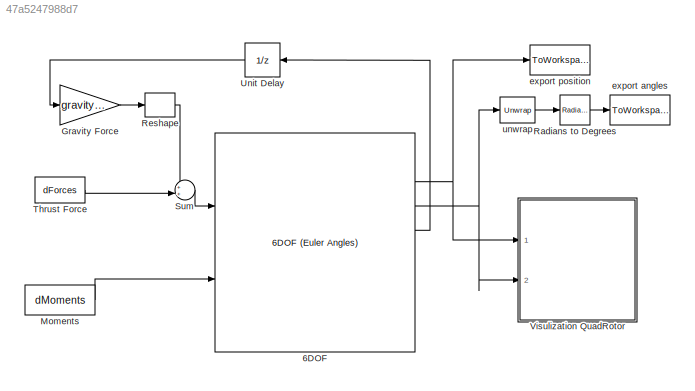
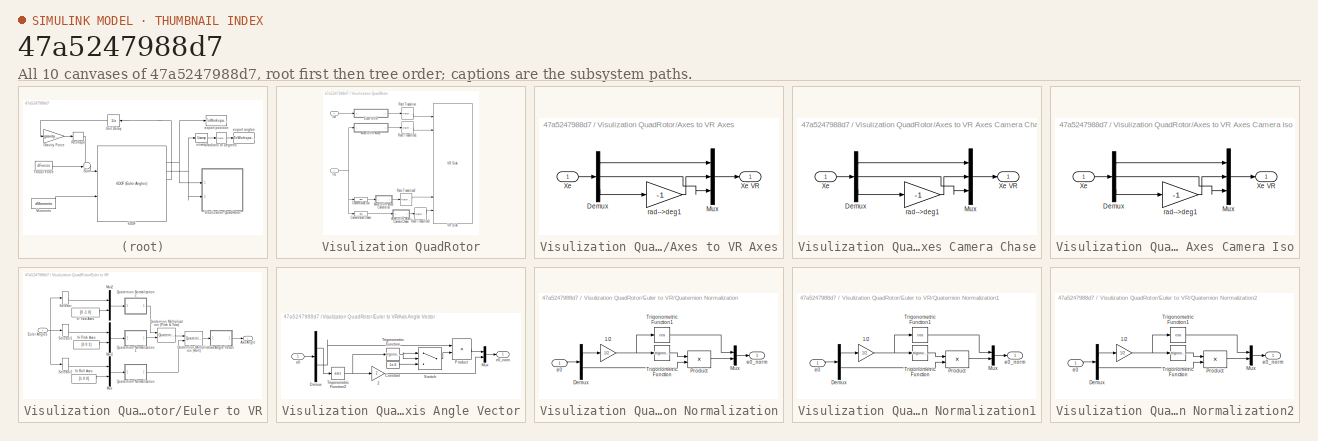
[diagram: thumbnail index - all 10 canvases of the model, root first then tree order]
MODEL slx_47a5247988d7
KIND model
CONFIG AbsTol = auto
CONFIG EnableMultiTasking = off
CONFIG FixedStep = 0.01
CONFIG MaxStep = auto
CONFIG MinStep = auto
CONFIG RelTol = 1e-3
CONFIG SampleTimeConstraint = Unconstrained
CONFIG Solver = ode4
CONFIG SolverName = ode4
CONFIG StartTime = 0.0
CONFIG StopTime = 10.0
BLOCK [Reference] 6DOF  REF=shared6dof/6DOF (Euler Angles)
  Ports = [2, 8]
  SourceBlock = shared6dof/6DOF (Euler Angles)
  SourceProductBaseCode = AE
  SourceProductName = Aerospace Blockset
  SourceType = 6DOF EoM (Body Axis)
BLOCK [Gain] Gravity Force
  Gain = gravity_Iframe
  Multiplication = Matrix(u*K)
  OutDataTypeStr = Inherit: Inherit via internal rule
  ParamDataTypeStr = Inherit: Inherit via internal rule
  SaturateOnIntegerOverflow = off
BLOCK [Constant] Moments
  Value = dMoments
BLOCK [Reference] Radians to Degrees  REF=simulink_extras/Transformations/Radians
to Degrees
  Ports = [1, 1]
  SourceBlock = simulink_extras/Transformations/Radians\nto Degrees
  SourceProductBaseCode = SL
  SourceProductName = Simulink
  SourceType = RadiansToDegrees
BLOCK [Reshape] Reshape
  Ports = [1, 1]
BLOCK [Sum] Sum
  IconShape = round
  InputSameDT = off
  Inputs = ++|
  OutDataTypeStr = Inherit: Inherit via internal rule
  Ports = [2, 1]
  SaturateOnIntegerOverflow = off
BLOCK [Constant] Thrust Force
  Value = dForces
BLOCK [UnitDelay] Unit Delay
  InitialCondition = rotationVectorToMatrix(initialState(7:9))
  InputProcessing = Elements as channels (sample based)
  SampleTime = -1
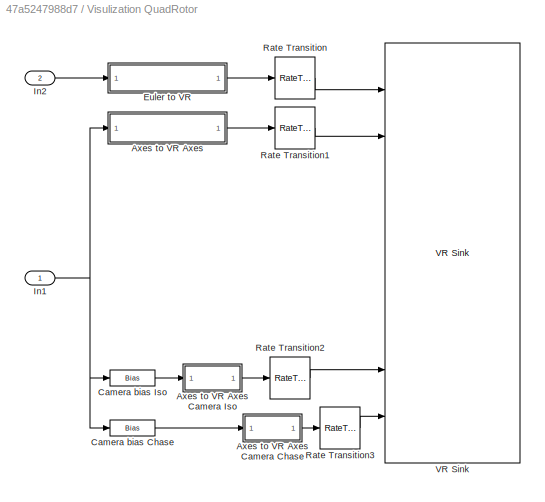
BLOCK [SubSystem] Visulization QuadRotor
  Ports = [2]
  RequestExecContextInheritance = off
BLOCK [SubSystem] Visulization QuadRotor/Axes to VR Axes
  Ports = [1, 1]
  RequestExecContextInheritance = off
BLOCK [SubSystem] Visulization QuadRotor/Axes to VR Axes Camera Chase
  Ports = [1, 1]
  RequestExecContextInheritance = off
BLOCK [Demux] Visulization QuadRotor/Axes to VR Axes Camera Chase/Demux
  Outputs = 3
  Ports = [1, 3]
BLOCK [Mux] Visulization QuadRotor/Axes to VR Axes Camera Chase/Mux
  DisplayOption = bar
  Inputs = 3
  Ports = [3, 1]
BLOCK [Inport] Visulization QuadRotor/Axes to VR Axes Camera Chase/Xe
  IconDisplay = Port number
BLOCK [Outport] Visulization QuadRotor/Axes to VR Axes Camera Chase/Xe VR
  IconDisplay = Port number
BLOCK [Gain] Visulization QuadRotor/Axes to VR Axes Camera Chase/rad-->deg1
  Gain = -1
BLOCK [SubSystem] Visulization QuadRotor/Axes to VR Axes Camera Iso
  Ports = [1, 1]
  RequestExecContextInheritance = off
BLOCK [Demux] Visulization QuadRotor/Axes to VR Axes Camera Iso/Demux
  Outputs = 3
  Ports = [1, 3]
BLOCK [Mux] Visulization QuadRotor/Axes to VR Axes Camera Iso/Mux
  DisplayOption = bar
  Inputs = 3
  Ports = [3, 1]
BLOCK [Inport] Visulization QuadRotor/Axes to VR Axes Camera Iso/Xe
  IconDisplay = Port number
BLOCK [Outport] Visulization QuadRotor/Axes to VR Axes Camera Iso/Xe VR
  IconDisplay = Port number
BLOCK [Gain] Visulization QuadRotor/Axes to VR Axes Camera Iso/rad-->deg1
  Gain = -1
BLOCK [Demux] Visulization QuadRotor/Axes to VR Axes/Demux
  Outputs = 3
  Ports = [1, 3]
BLOCK [Mux] Visulization QuadRotor/Axes to VR Axes/Mux
  DisplayOption = bar
  Inputs = 3
  Ports = [3, 1]
BLOCK [Inport] Visulization QuadRotor/Axes to VR Axes/Xe
  IconDisplay = Port number
BLOCK [Outport] Visulization QuadRotor/Axes to VR Axes/Xe VR
  IconDisplay = Port number
BLOCK [Gain] Visulization QuadRotor/Axes to VR Axes/rad-->deg1
  Gain = -1
BLOCK [Bias] Visulization QuadRotor/Camera bias Chase
  Bias = [-4 0 -.9558]'
  SaturateOnIntegerOverflow = off
BLOCK [Bias] Visulization QuadRotor/Camera bias Iso
  Bias = [0.9009 .99 -.6247]'
  SaturateOnIntegerOverflow = off
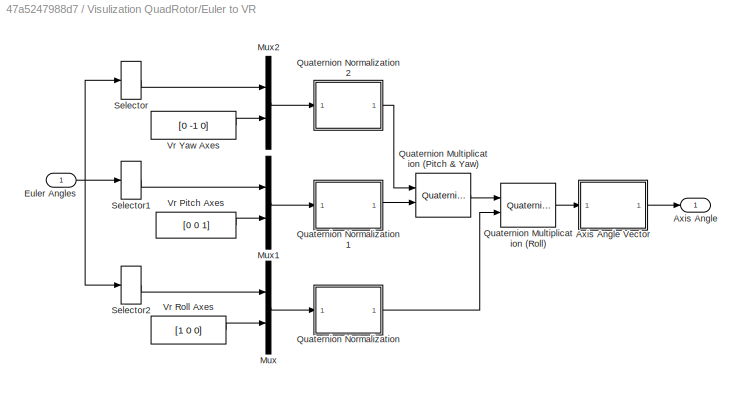
BLOCK [SubSystem] Visulization QuadRotor/Euler to VR
  Ports = [1, 1]
  RequestExecContextInheritance = off
BLOCK [Outport] Visulization QuadRotor/Euler to VR/Axis Angle
  IconDisplay = Port number
BLOCK [SubSystem] Visulization QuadRotor/Euler to VR/Axis Angle Vector
  Ports = [1, 1]
  RequestExecContextInheritance = off
BLOCK [Gain] Visulization QuadRotor/Euler to VR/Axis Angle Vector/2
  Gain = 2
BLOCK [Constant] Visulization QuadRotor/Euler to VR/Axis Angle Vector/Constant
  Value = 1e-6
BLOCK [Demux] Visulization QuadRotor/Euler to VR/Axis Angle Vector/Demux
  Outputs = [1 3 ]
  Ports = [1, 2]
BLOCK [Mux] Visulization QuadRotor/Euler to VR/Axis Angle Vector/Mux
  DisplayOption = bar
  Inputs = 2
  Ports = [2, 1]
BLOCK [Product] Visulization QuadRotor/Euler to VR/Axis Angle Vector/Product
  Inputs = */
  Ports = [2, 1]
  RndMeth = Floor
BLOCK [Switch] Visulization QuadRotor/Euler to VR/Axis Angle Vector/Switch
  Criteria = u2 ~= 0
  InputSameDT = off
  SaturateOnIntegerOverflow = off
BLOCK [Trigonometry] Visulization QuadRotor/Euler to VR/Axis Angle Vector/Trigonometric Function
  Ports = [1, 1]
BLOCK [Trigonometry] Visulization QuadRotor/Euler to VR/Axis Angle Vector/Trigonometric Function2
  Operator = acos
  Ports = [1, 1]
BLOCK [Inport] Visulization QuadRotor/Euler to VR/Axis Angle Vector/e0
  IconDisplay = Port number
BLOCK [Outport] Visulization QuadRotor/Euler to VR/Axis Angle Vector/e0_norm
  IconDisplay = Port number
BLOCK [Inport] Visulization QuadRotor/Euler to VR/Euler Angles
  IconDisplay = Port number
BLOCK [Mux] Visulization QuadRotor/Euler to VR/Mux
  DisplayOption = bar
  Inputs = 2
  Ports = [2, 1]
BLOCK [Mux] Visulization QuadRotor/Euler to VR/Mux1
  DisplayOption = bar
  Inputs = 2
  Ports = [2, 1]
BLOCK [Mux] Visulization QuadRotor/Euler to VR/Mux2
  DisplayOption = bar
  Inputs = 2
  Ports = [2, 1]
BLOCK [Reference] Visulization QuadRotor/Euler to VR/Quaternion Multiplication (Pitch & Yaw)  REF=aerolibutil/Quaternion
Multiplication
  Ports = [2, 1]
  SourceBlock = aerolibutil/Quaternion\nMultiplication
  SourceProductBaseCode = AE
  SourceProductName = Aerospace Blockset
  SourceType = Quaternion Multiplication
BLOCK [Reference] Visulization QuadRotor/Euler to VR/Quaternion Multiplication (Roll)  REF=aerolibutil/Quaternion
Multiplication
  Ports = [2, 1]
  SourceBlock = aerolibutil/Quaternion\nMultiplication
  SourceProductBaseCode = AE
  SourceProductName = Aerospace Blockset
  SourceType = Quaternion Multiplication
BLOCK [SubSystem] Visulization QuadRotor/Euler to VR/Quaternion Normalization
  Ports = [1, 1]
  RequestExecContextInheritance = off
BLOCK [Gain] Visulization QuadRotor/Euler to VR/Quaternion Normalization/1//2
  Gain = 1/2
BLOCK [Demux] Visulization QuadRotor/Euler to VR/Quaternion Normalization/Demux
  Outputs = [1 3]
  Ports = [1, 2]
BLOCK [Mux] Visulization QuadRotor/Euler to VR/Quaternion Normalization/Mux
  DisplayOption = bar
  Inputs = 2
  Ports = [2, 1]
BLOCK [Product] Visulization QuadRotor/Euler to VR/Quaternion Normalization/Product
  Ports = [2, 1]
  RndMeth = Floor
BLOCK [Trigonometry] Visulization QuadRotor/Euler to VR/Quaternion Normalization/Trigonometric Function
  Ports = [1, 1]
BLOCK [Trigonometry] Visulization QuadRotor/Euler to VR/Quaternion Normalization/Trigonometric Function1
  Operator = cos
  Ports = [1, 1]
BLOCK [Inport] Visulization QuadRotor/Euler to VR/Quaternion Normalization/e0
  IconDisplay = Port number
BLOCK [Outport] Visulization QuadRotor/Euler to VR/Quaternion Normalization/e0_norm
  IconDisplay = Port number
BLOCK [SubSystem] Visulization QuadRotor/Euler to VR/Quaternion Normalization1
  Ports = [1, 1]
  RequestExecContextInheritance = off
BLOCK [Gain] Visulization QuadRotor/Euler to VR/Quaternion Normalization1/1//2
  Gain = 1/2
BLOCK [Demux] Visulization QuadRotor/Euler to VR/Quaternion Normalization1/Demux
  Outputs = [1 3]
  Ports = [1, 2]
BLOCK [Mux] Visulization QuadRotor/Euler to VR/Quaternion Normalization1/Mux
  DisplayOption = bar
  Inputs = 2
  Ports = [2, 1]
BLOCK [Product] Visulization QuadRotor/Euler to VR/Quaternion Normalization1/Product
  Ports = [2, 1]
  RndMeth = Floor
BLOCK [Trigonometry] Visulization QuadRotor/Euler to VR/Quaternion Normalization1/Trigonometric Function
  Ports = [1, 1]
BLOCK [Trigonometry] Visulization QuadRotor/Euler to VR/Quaternion Normalization1/Trigonometric Function1
  Operator = cos
  Ports = [1, 1]
BLOCK [Inport] Visulization QuadRotor/Euler to VR/Quaternion Normalization1/e0
  IconDisplay = Port number
BLOCK [Outport] Visulization QuadRotor/Euler to VR/Quaternion Normalization1/e0_norm
  IconDisplay = Port number
BLOCK [SubSystem] Visulization QuadRotor/Euler to VR/Quaternion Normalization2
  Ports = [1, 1]
  RequestExecContextInheritance = off
BLOCK [Gain] Visulization QuadRotor/Euler to VR/Quaternion Normalization2/1//2
  Gain = 1/2
BLOCK [Demux] Visulization QuadRotor/Euler to VR/Quaternion Normalization2/Demux
  Outputs = [1 3]
  Ports = [1, 2]
BLOCK [Mux] Visulization QuadRotor/Euler to VR/Quaternion Normalization2/Mux
  DisplayOption = bar
  Inputs = 2
  Ports = [2, 1]
BLOCK [Product] Visulization QuadRotor/Euler to VR/Quaternion Normalization2/Product
  Ports = [2, 1]
  RndMeth = Floor
BLOCK [Trigonometry] Visulization QuadRotor/Euler to VR/Quaternion Normalization2/Trigonometric Function
  Ports = [1, 1]
BLOCK [Trigonometry] Visulization QuadRotor/Euler to VR/Quaternion Normalization2/Trigonometric Function1
  Operator = cos
  Ports = [1, 1]
BLOCK [Inport] Visulization QuadRotor/Euler to VR/Quaternion Normalization2/e0
  IconDisplay = Port number
BLOCK [Outport] Visulization QuadRotor/Euler to VR/Quaternion Normalization2/e0_norm
  IconDisplay = Port number
BLOCK [Selector] Visulization QuadRotor/Euler to VR/Selector
  IndexOptions = Index vector (dialog)
  Indices = [3]
  InputPortWidth = 3
  OutputSizes = 1
  Ports = [1, 1]
BLOCK [Selector] Visulization QuadRotor/Euler to VR/Selector1
  IndexOptions = Index vector (dialog)
  Indices = [2]
  InputPortWidth = 3
  OutputSizes = 1
  Ports = [1, 1]
BLOCK [Selector] Visulization QuadRotor/Euler to VR/Selector2
  IndexOptions = Index vector (dialog)
  Indices = [1]
  InputPortWidth = 3
  OutputSizes = 1
  Ports = [1, 1]
BLOCK [Constant] Visulization QuadRotor/Euler to VR/Vr Pitch Axes
  Value = [0 0 1]
BLOCK [Constant] Visulization QuadRotor/Euler to VR/Vr Roll Axes
  Value = [1 0 0]
BLOCK [Constant] Visulization QuadRotor/Euler to VR/Vr Yaw Axes
  Value = [0 -1 0]
BLOCK [Inport] Visulization QuadRotor/In1
  IconDisplay = Port number
BLOCK [Inport] Visulization QuadRotor/In2
  IconDisplay = Port number
  Port = 2
BLOCK [RateTransition] Visulization QuadRotor/Rate Transition
BLOCK [RateTransition] Visulization QuadRotor/Rate Transition1
BLOCK [RateTransition] Visulization QuadRotor/Rate Transition2
BLOCK [RateTransition] Visulization QuadRotor/Rate Transition3
BLOCK [Reference] Visulization QuadRotor/VR Sink  REF=vrlib/VR Sink
  InstantiateOnLoad = on
  Ports = [8]
  SourceBlock = vrlib/VR Sink
  SourceProductBaseCode = VR
  SourceProductName = Simulink 3D Animation
  SourceType = Virtual Reality Sink
BLOCK [ToWorkspace] export angles
  FixptAsFi = on
  MaxDataPoints = inf
  Ports = [1]
  SampleTime = -1
  Save2DSignal = 3-D array (concatenate along third dimension)
  SaveFormat = Timeseries
  VariableName = phi_theta_epsi
BLOCK [ToWorkspace] export position
  FixptAsFi = on
  MaxDataPoints = inf
  Ports = [1]
  SampleTime = -1
  Save2DSignal = 3-D array (concatenate along third dimension)
  SaveFormat = Timeseries
  VariableName = xyz
BLOCK [Reference] unwrap  REF=dspsigops/Unwrap
  Ports = [1, 1]
  SourceBlock = dspsigops/Unwrap
  SourceProductBaseCode = DS
  SourceProductName = DSP System Toolbox
  SourceType = Unwrap
  UserDataPersistent = on
NET 6DOF:2 -> Visulization QuadRotor:1, export position:1
NET 6DOF:3 -> Visulization QuadRotor:2, unwrap:1
LINE 6DOF:4 -> Unit Delay:1
LINE Gravity Force:1 -> Reshape:1
LINE Moments:1 -> 6DOF:2
LINE Radians to Degrees:1 -> export angles:1
LINE Reshape:1 -> Sum:1
LINE Sum:1 -> 6DOF:1
LINE Thrust Force:1 -> Sum:2
LINE Unit Delay:1 -> Gravity Force:1
LINE Visulization QuadRotor/Axes to VR Axes Camera Chase/Demux:1 -> Visulization QuadRotor/Axes to VR Axes Camera Chase/Mux:1
LINE Visulization QuadRotor/Axes to VR Axes Camera Chase/Demux:2 -> Visulization QuadRotor/Axes to VR Axes Camera Chase/Mux:3
LINE Visulization QuadRotor/Axes to VR Axes Camera Chase/Demux:3 -> Visulization QuadRotor/Axes to VR Axes Camera Chase/rad-->deg1:1
LINE Visulization QuadRotor/Axes to VR Axes Camera Chase/Mux:1 -> Visulization QuadRotor/Axes to VR Axes Camera Chase/Xe VR:1
LINE Visulization QuadRotor/Axes to VR Axes Camera Chase/Xe:1 -> Visulization QuadRotor/Axes to VR Axes Camera Chase/Demux:1
LINE Visulization QuadRotor/Axes to VR Axes Camera Chase/rad-->deg1:1 -> Visulization QuadRotor/Axes to VR Axes Camera Chase/Mux:2
LINE Visulization QuadRotor/Axes to VR Axes Camera Chase:1 -> Visulization QuadRotor/Rate Transition3:1
LINE Visulization QuadRotor/Axes to VR Axes Camera Iso/Demux:1 -> Visulization QuadRotor/Axes to VR Axes Camera Iso/Mux:1
LINE Visulization QuadRotor/Axes to VR Axes Camera Iso/Demux:2 -> Visulization QuadRotor/Axes to VR Axes Camera Iso/Mux:3
LINE Visulization QuadRotor/Axes to VR Axes Camera Iso/Demux:3 -> Visulization QuadRotor/Axes to VR Axes Camera Iso/rad-->deg1:1
LINE Visulization QuadRotor/Axes to VR Axes Camera Iso/Mux:1 -> Visulization QuadRotor/Axes to VR Axes Camera Iso/Xe VR:1
LINE Visulization QuadRotor/Axes to VR Axes Camera Iso/Xe:1 -> Visulization QuadRotor/Axes to VR Axes Camera Iso/Demux:1
LINE Visulization QuadRotor/Axes to VR Axes Camera Iso/rad-->deg1:1 -> Visulization QuadRotor/Axes to VR Axes Camera Iso/Mux:2
LINE Visulization QuadRotor/Axes to VR Axes Camera Iso:1 -> Visulization QuadRotor/Rate Transition2:1
LINE Visulization QuadRotor/Axes to VR Axes/Demux:1 -> Visulization QuadRotor/Axes to VR Axes/Mux:1
LINE Visulization QuadRotor/Axes to VR Axes/Demux:2 -> Visulization QuadRotor/Axes to VR Axes/Mux:3
LINE Visulization QuadRotor/Axes to VR Axes/Demux:3 -> Visulization QuadRotor/Axes to VR Axes/rad-->deg1:1
LINE Visulization QuadRotor/Axes to VR Axes/Mux:1 -> Visulization QuadRotor/Axes to VR Axes/Xe VR:1
LINE Visulization QuadRotor/Axes to VR Axes/Xe:1 -> Visulization QuadRotor/Axes to VR Axes/Demux:1
LINE Visulization QuadRotor/Axes to VR Axes/rad-->deg1:1 -> Visulization QuadRotor/Axes to VR Axes/Mux:2
LINE Visulization QuadRotor/Axes to VR Axes:1 -> Visulization QuadRotor/Rate Transition1:1
LINE Visulization QuadRotor/Camera bias Chase:1 -> Visulization QuadRotor/Axes to VR Axes Camera Chase:1
LINE Visulization QuadRotor/Camera bias Iso:1 -> Visulization QuadRotor/Axes to VR Axes Camera Iso:1
LINE Visulization QuadRotor/Euler to VR/Axis Angle Vector/2:1 -> Visulization QuadRotor/Euler to VR/Axis Angle Vector/Mux:2
LINE Visulization QuadRotor/Euler to VR/Axis Angle Vector/Constant:1 -> Visulization QuadRotor/Euler to VR/Axis Angle Vector/Switch:3
LINE Visulization QuadRotor/Euler to VR/Axis Angle Vector/Demux:1 -> Visulization QuadRotor/Euler to VR/Axis Angle Vector/Trigonometric Function2:1
LINE Visulization QuadRotor/Euler to VR/Axis Angle Vector/Demux:2 -> Visulization QuadRotor/Euler to VR/Axis Angle Vector/Product:1
LINE Visulization QuadRotor/Euler to VR/Axis Angle Vector/Mux:1 -> Visulization QuadRotor/Euler to VR/Axis Angle Vector/e0_norm:1
LINE Visulization QuadRotor/Euler to VR/Axis Angle Vector/Product:1 -> Visulization QuadRotor/Euler to VR/Axis Angle Vector/Mux:1
LINE Visulization QuadRotor/Euler to VR/Axis Angle Vector/Switch:1 -> Visulization QuadRotor/Euler to VR/Axis Angle Vector/Product:2
NET Visulization QuadRotor/Euler to VR/Axis Angle Vector/Trigonometric Function2:1 -> Visulization QuadRotor/Euler to VR/Axis Angle Vector/2:1, Visulization QuadRotor/Euler to VR/Axis Angle Vector/Trigonometric Function:1
NET Visulization QuadRotor/Euler to VR/Axis Angle Vector/Trigonometric Function:1 -> Visulization QuadRotor/Euler to VR/Axis Angle Vector/Switch:1, Visulization QuadRotor/Euler to VR/Axis Angle Vector/Switch:2
LINE Visulization QuadRotor/Euler to VR/Axis Angle Vector/e0:1 -> Visulization QuadRotor/Euler to VR/Axis Angle Vector/Demux:1
LINE Visulization QuadRotor/Euler to VR/Axis Angle Vector:1 -> Visulization QuadRotor/Euler to VR/Axis Angle:1
NET Visulization QuadRotor/Euler to VR/Euler Angles:1 -> Visulization QuadRotor/Euler to VR/Selector1:1, Visulization QuadRotor/Euler to VR/Selector2:1, Visulization QuadRotor/Euler to VR/Selector:1
LINE Visulization QuadRotor/Euler to VR/Mux1:1 -> Visulization QuadRotor/Euler to VR/Quaternion Normalization1:1
LINE Visulization QuadRotor/Euler to VR/Mux2:1 -> Visulization QuadRotor/Euler to VR/Quaternion Normalization2:1
LINE Visulization QuadRotor/Euler to VR/Mux:1 -> Visulization QuadRotor/Euler to VR/Quaternion Normalization:1
LINE Visulization QuadRotor/Euler to VR/Quaternion Multiplication (Pitch & Yaw):1 -> Visulization QuadRotor/Euler to VR/Quaternion Multiplication (Roll):1
LINE Visulization QuadRotor/Euler to VR/Quaternion Multiplication (Roll):1 -> Visulization QuadRotor/Euler to VR/Axis Angle Vector:1
NET Visulization QuadRotor/Euler to VR/Quaternion Normalization/1//2:1 -> Visulization QuadRotor/Euler to VR/Quaternion Normalization/Trigonometric Function1:1, Visulization QuadRotor/Euler to VR/Quaternion Normalization/Trigonometric Function:1
LINE Visulization QuadRotor/Euler to VR/Quaternion Normalization/Demux:1 -> Visulization QuadRotor/Euler to VR/Quaternion Normalization/1//2:1
LINE Visulization QuadRotor/Euler to VR/Quaternion Normalization/Demux:2 -> Visulization QuadRotor/Euler to VR/Quaternion Normalization/Product:2
LINE Visulization QuadRotor/Euler to VR/Quaternion Normalization/Mux:1 -> Visulization QuadRotor/Euler to VR/Quaternion Normalization/e0_norm:1
LINE Visulization QuadRotor/Euler to VR/Quaternion Normalization/Product:1 -> Visulization QuadRotor/Euler to VR/Quaternion Normalization/Mux:2
LINE Visulization QuadRotor/Euler to VR/Quaternion Normalization/Trigonometric Function1:1 -> Visulization QuadRotor/Euler to VR/Quaternion Normalization/Mux:1
LINE Visulization QuadRotor/Euler to VR/Quaternion Normalization/Trigonometric Function:1 -> Visulization QuadRotor/Euler to VR/Quaternion Normalization/Product:1
LINE Visulization QuadRotor/Euler to VR/Quaternion Normalization/e0:1 -> Visulization QuadRotor/Euler to VR/Quaternion Normalization/Demux:1
NET Visulization QuadRotor/Euler to VR/Quaternion Normalization1/1//2:1 -> Visulization QuadRotor/Euler to VR/Quaternion Normalization1/Trigonometric Function1:1, Visulization QuadRotor/Euler to VR/Quaternion Normalization1/Trigonometric Function:1
LINE Visulization QuadRotor/Euler to VR/Quaternion Normalization1/Demux:1 -> Visulization QuadRotor/Euler to VR/Quaternion Normalization1/1//2:1
LINE Visulization QuadRotor/Euler to VR/Quaternion Normalization1/Demux:2 -> Visulization QuadRotor/Euler to VR/Quaternion Normalization1/Product:2
LINE Visulization QuadRotor/Euler to VR/Quaternion Normalization1/Mux:1 -> Visulization QuadRotor/Euler to VR/Quaternion Normalization1/e0_norm:1
LINE Visulization QuadRotor/Euler to VR/Quaternion Normalization1/Product:1 -> Visulization QuadRotor/Euler to VR/Quaternion Normalization1/Mux:2
LINE Visulization QuadRotor/Euler to VR/Quaternion Normalization1/Trigonometric Function1:1 -> Visulization QuadRotor/Euler to VR/Quaternion Normalization1/Mux:1
LINE Visulization QuadRotor/Euler to VR/Quaternion Normalization1/Trigonometric Function:1 -> Visulization QuadRotor/Euler to VR/Quaternion Normalization1/Product:1
LINE Visulization QuadRotor/Euler to VR/Quaternion Normalization1/e0:1 -> Visulization QuadRotor/Euler to VR/Quaternion Normalization1/Demux:1
LINE Visulization QuadRotor/Euler to VR/Quaternion Normalization1:1 -> Visulization QuadRotor/Euler to VR/Quaternion Multiplication (Pitch & Yaw):2
NET Visulization QuadRotor/Euler to VR/Quaternion Normalization2/1//2:1 -> Visulization QuadRotor/Euler to VR/Quaternion Normalization2/Trigonometric Function1:1, Visulization QuadRotor/Euler to VR/Quaternion Normalization2/Trigonometric Function:1
LINE Visulization QuadRotor/Euler to VR/Quaternion Normalization2/Demux:1 -> Visulization QuadRotor/Euler to VR/Quaternion Normalization2/1//2:1
LINE Visulization QuadRotor/Euler to VR/Quaternion Normalization2/Demux:2 -> Visulization QuadRotor/Euler to VR/Quaternion Normalization2/Product:2
LINE Visulization QuadRotor/Euler to VR/Quaternion Normalization2/Mux:1 -> Visulization QuadRotor/Euler to VR/Quaternion Normalization2/e0_norm:1
LINE Visulization QuadRotor/Euler to VR/Quaternion Normalization2/Product:1 -> Visulization QuadRotor/Euler to VR/Quaternion Normalization2/Mux:2
LINE Visulization QuadRotor/Euler to VR/Quaternion Normalization2/Trigonometric Function1:1 -> Visulization QuadRotor/Euler to VR/Quaternion Normalization2/Mux:1
LINE Visulization QuadRotor/Euler to VR/Quaternion Normalization2/Trigonometric Function:1 -> Visulization QuadRotor/Euler to VR/Quaternion Normalization2/Product:1
LINE Visulization QuadRotor/Euler to VR/Quaternion Normalization2/e0:1 -> Visulization QuadRotor/Euler to VR/Quaternion Normalization2/Demux:1
LINE Visulization QuadRotor/Euler to VR/Quaternion Normalization2:1 -> Visulization QuadRotor/Euler to VR/Quaternion Multiplication (Pitch & Yaw):1
LINE Visulization QuadRotor/Euler to VR/Quaternion Normalization:1 -> Visulization QuadRotor/Euler to VR/Quaternion Multiplication (Roll):2
LINE Visulization QuadRotor/Euler to VR/Selector1:1 -> Visulization QuadRotor/Euler to VR/Mux1:1
LINE Visulization QuadRotor/Euler to VR/Selector2:1 -> Visulization QuadRotor/Euler to VR/Mux:1
LINE Visulization QuadRotor/Euler to VR/Selector:1 -> Visulization QuadRotor/Euler to VR/Mux2:1
LINE Visulization QuadRotor/Euler to VR/Vr Pitch Axes:1 -> Visulization QuadRotor/Euler to VR/Mux1:2
LINE Visulization QuadRotor/Euler to VR/Vr Roll Axes:1 -> Visulization QuadRotor/Euler to VR/Mux:2
LINE Visulization QuadRotor/Euler to VR/Vr Yaw Axes:1 -> Visulization QuadRotor/Euler to VR/Mux2:2
LINE Visulization QuadRotor/Euler to VR:1 -> Visulization QuadRotor/Rate Transition:1
NET Visulization QuadRotor/In1:1 -> Visulization QuadRotor/Axes to VR Axes:1, Visulization QuadRotor/Camera bias Chase:1, Visulization QuadRotor/Camera bias Iso:1
LINE Visulization QuadRotor/In2:1 -> Visulization QuadRotor/Euler to VR:1
LINE Visulization QuadRotor/Rate Transition1:1 -> Visulization QuadRotor/VR Sink:2
LINE Visulization QuadRotor/Rate Transition2:1 -> Visulization QuadRotor/VR Sink:7
LINE Visulization QuadRotor/Rate Transition3:1 -> Visulization QuadRotor/VR Sink:8
LINE Visulization QuadRotor/Rate Transition:1 -> Visulization QuadRotor/VR Sink:1
LINE unwrap:1 -> Radians to Degrees:1
note: NET lines group one-source signal fan-out (src -> all destinations, sorted); 1:1 wires keep LINE
